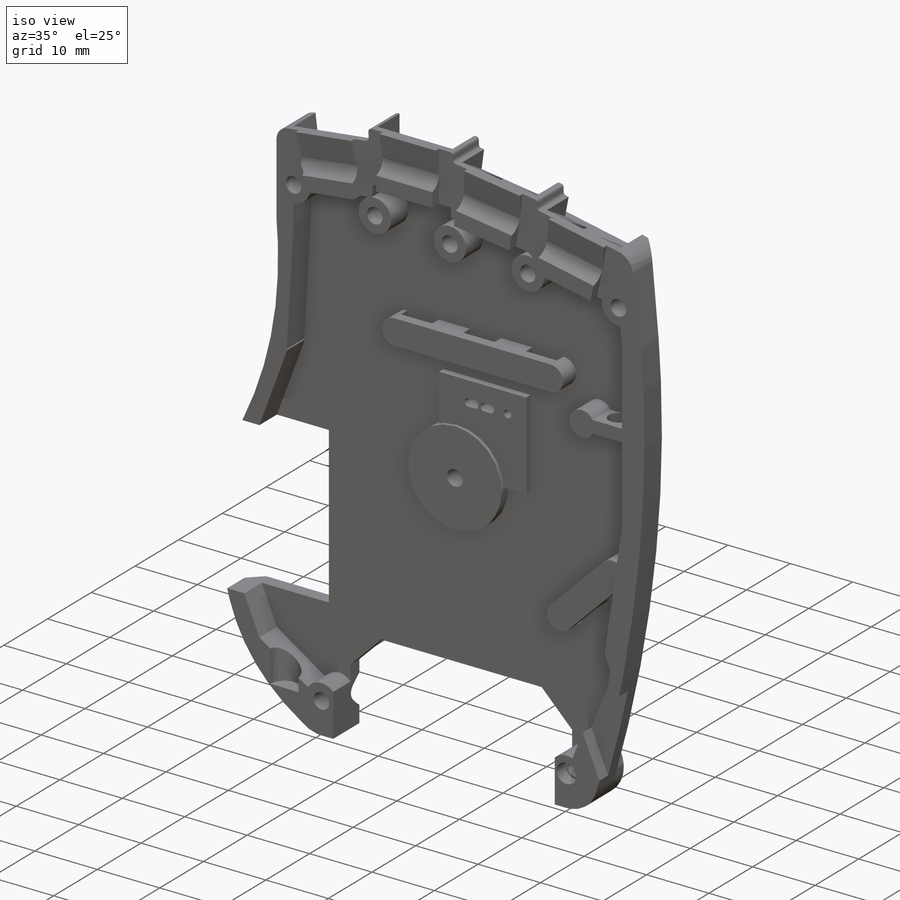
[diagram: iso view]
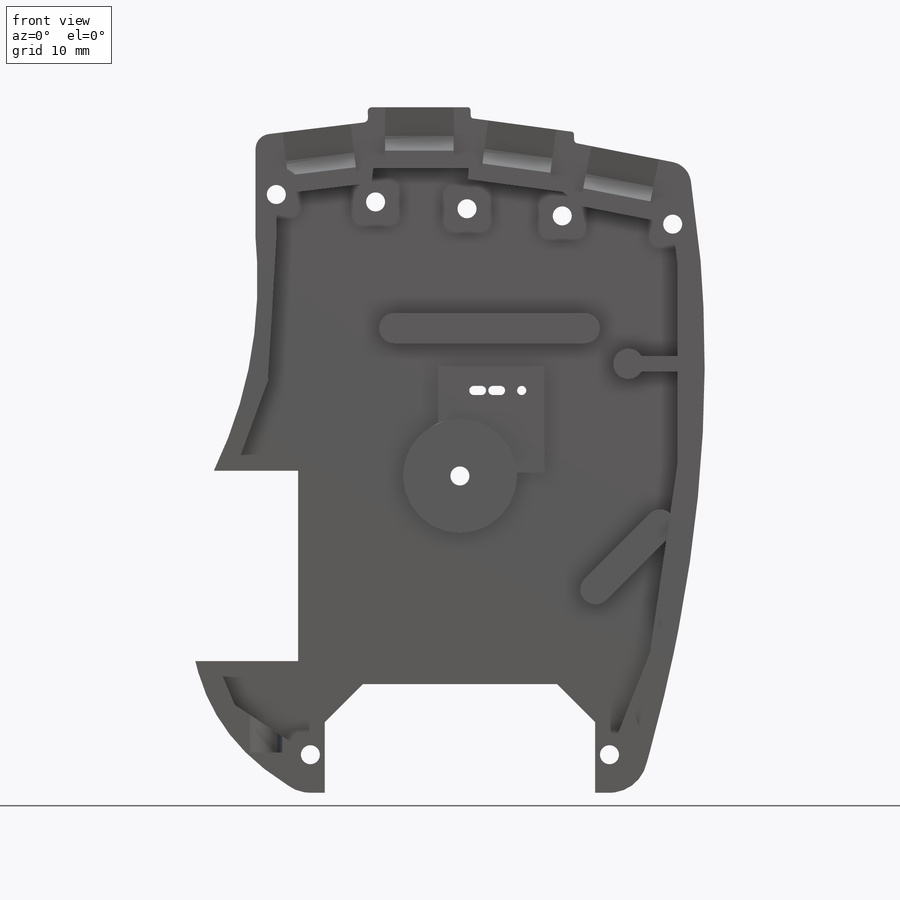
[diagram: front view]
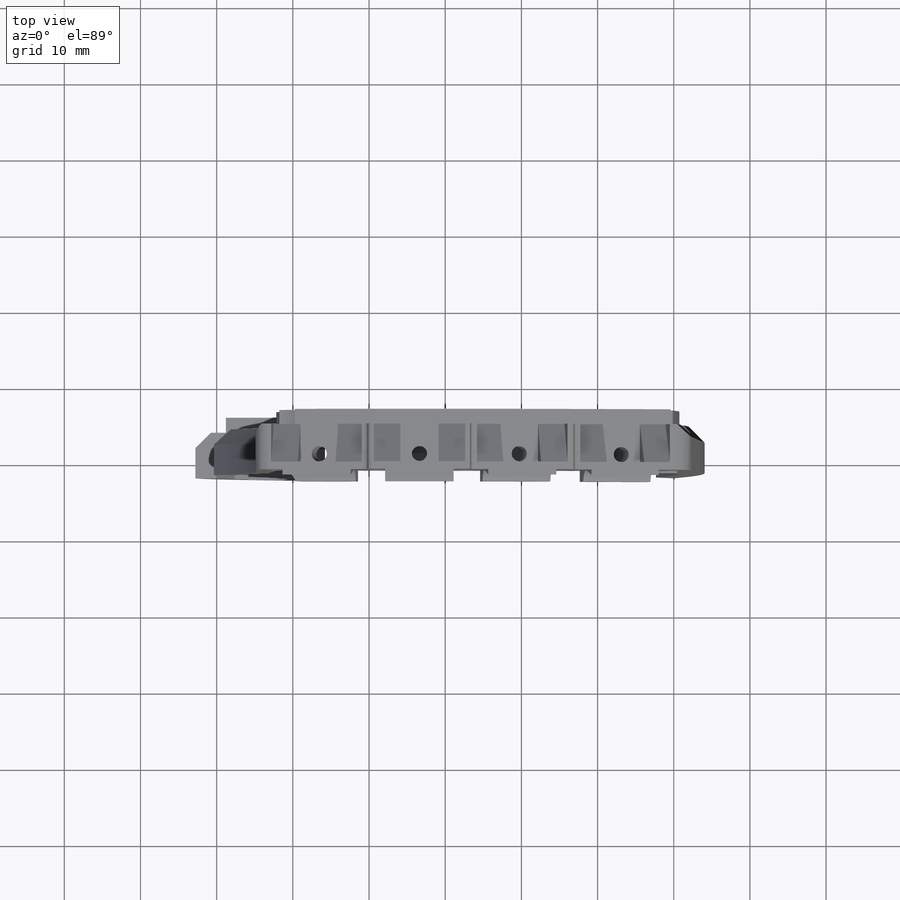
[diagram: top view]
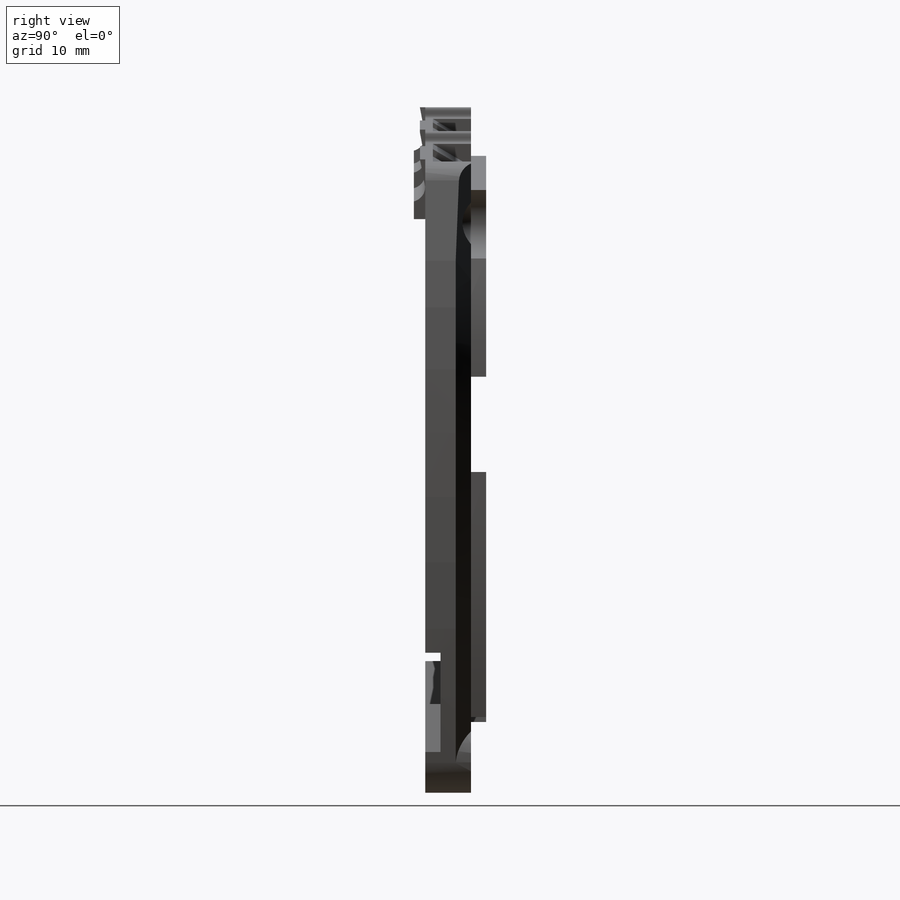
[diagram: right view]
SOLIDWORKS PART (.sldprt)
format: sldprt  version: not decoded by parser v0  size: 1,618,944 bytes
history: native  units: mm
features: sketch x45, cut_extrude x31, extrude x12, plane x5, chamfer x3, material x1 (+14 scaffold rows collapsed; 1 parser-record rows omitted)
feature tree (112):
  scaffold x14  (default folders/planes/origin — collapsed)
  material  "Material <not specified>"
  sketch  "Sketch1"  dims[D1=74.0mm D2=90.0mm]
  sketch  "Sketch2"  dims[c1.D11=5.0mm c1.D12=5.0mm c1.D13=5.0mm c1.D14=2.0mm c1.D2=3.0mm c1.D15=~4.769679mm c2.D11=~5.103098mm c2.D1=45.0mm c2.D2=13.0mm c2.D3=12.5mm c2.D4=1.0mm c2.D5=1.0mm c2.D6=12.5mm c2.D7=1.0mm c2.D8=13.0mm c2.D9=2.0mm c2.D10=1.5mm c2.D15=~39.262421mm c3.D11=12.5mm c3.D8=12.5mm c4.D11=12.5mm c4.D15=16.0mm c4.D16=~1.562387mm]
  extrude  "Boss-Extrude1"  Depth=2mm
  sketch  "Sketch28"  dims[D1=8.0mm D2=8.0mm D3=8.0mm D4=8.0mm D5=5.0mm D6=25.0mm]
  cut_extrude  "Cut-Extrude1"  Depth=2mm
  parser-record x1  (decoder bookkeeping rows leaked as tree rows — omitted from the tree; the rows remain in map.json)
  sketch  "Sketch30"  dims[D1=5.2mm D2=14.5mm D3=12.5mm D4=12.0mm]
  extrude  "Boss-Extrude2"  [1 undecoded]
  sketch  "Sketch32"  dims[D1=2.5mm]
  cut_extrude  "Cut-Extrude2"  [1 undecoded]
  sketch  "Sketch33"  dims[D1=6.0mm]
  cut_extrude  "Cut-Extrude3"  Depth=2mm
  sketch  "Sketch41"  dims[D1=9.0mm D2=1.5mm]
  extrude  "Boss-Extrude3"  [1 undecoded]
  sketch  "Sketch42"  dims[D1=9.0mm D2=1.5mm]
  extrude  "Boss-Extrude4"  [1 undecoded]
  sketch  "Sketch43"  dims[D1=9.0mm D2=1.5mm]
  extrude  "Boss-Extrude5"  [1 undecoded]
  sketch  "Sketch44"  dims[D1=1.5mm D2=9.0mm]
  extrude  "Boss-Extrude6"  [1 undecoded]
  sketch  "Sketch46"  dims[c1.D2=5.0mm c1.D1=25.5mm c2.D2=1.88mm c2.D3=~15.028325mm c2.D4=5.0mm c3.D3=14.27mm c3.D4=9.27mm]
  cut_extrude  "Cut-Extrude11"  [1 undecoded]
  sketch  "Sketch47"  dims[c1.D3=4.0mm c1.D1=0.5mm c1.D2=3.77mm c1.D4=2.5mm c2.D1=3.77mm c2.D2=0.5mm c2.D4=8.0mm c2.D5=1.0mm]
  cut_extrude  "Cut-Extrude12"  [1 undecoded]
  sketch  "Sketch48"  dims[D3=4.0mm D1=0.5mm D2=3.77mm D4=8.0mm D5=1.0mm]
  cut_extrude  "Cut-Extrude13"  [1 undecoded]
  sketch  "Sketch49"  dims[D5=4.0mm D1=8.0mm D2=3.77mm D3=0.5mm D4=1.0mm]
  cut_extrude  "Cut-Extrude14"  [1 undecoded]
  sketch  "Sketch50"  dims[4=4.0mm D1=0.5mm D2=3.7mm D3=8.0mm D4=1.0mm]
  cut_extrude  "Cut-Extrude15"  [1 undecoded]
  plane  "Plane1"
  plane  "Plane2"
  plane  "Plane3"
  plane  "Plane4"
  sketch  "Sketch53"  dims[D1=6.0mm D2=3.0mm D3=5.0mm]
  cut_extrude  "Cut-Extrude16"  Depth=10.5mm
  sketch  "Sketch54"  dims[D1=6.0mm D2=5.0mm D3=3.0mm]
  cut_extrude  "Cut-Extrude17"  Depth=10.5mm
  sketch  "Sketch55"  dims[D1=6.0mm D2=5.0mm D3=3.0mm]
  cut_extrude  "Cut-Extrude18"  Depth=10.5mm
  sketch  "Sketch56"  dims[D1=6.0mm D2=5.0mm D3=3.0mm]
  cut_extrude  "Cut-Extrude19"  Depth=10.5mm
  sketch  "Sketch57"  dims[D1=13.5mm]
  cut_extrude  "Cut-Extrude21"  [1 undecoded]
  sketch  "Sketch59"  dims[D1=2.5mm D2=28.0mm]
  sketch  "Sketch61"  dims[D1=22.0mm D2=8.0mm D3=5.0mm]
  cut_extrude  "Cut-Extrude23"  Depth=2mm
  sketch  "Sketch62"  dims[D1=2.0mm D2=2.71mm]
  cut_extrude  "Cut-Extrude24"  [1 undecoded]
  sketch  "Sketch63"  dims[D1=2.0mm D2=2.77mm]
  cut_extrude  "Cut-Extrude25"  [1 undecoded]
  sketch  "Sketch64"  dims[D1=2.0mm D2=2.77mm]
  cut_extrude  "Cut-Extrude26"  [1 undecoded]
  sketch  "Sketch65"  dims[D1=2.0mm D2=2.77mm]
  cut_extrude  "Cut-Extrude27"  [1 undecoded]
  sketch  "Sketch68"  dims[D1=5.0mm]
  cut_extrude  "Cut-Extrude28"  Depth=3mm
  sketch  "Sketch69"  dims[D1=5.0mm]
  cut_extrude  "Cut-Extrude29"  Depth=3mm
  sketch  "Sketch70"  dims[D1=5.0mm]
  cut_extrude  "Cut-Extrude30"  Depth=3mm
  sketch  "Sketch71"  dims[D1=5.0mm]
  cut_extrude  "Cut-Extrude31"  Depth=3mm
  sketch  "Sketch72"  dims[D1=4.0mm D2=2.0mm D3=6.418mm]
  extrude  "Boss-Extrude7"  [1 undecoded]
  sketch  "Sketch73"  dims[c1.D1=3.0mm c1.D2=0.75mm c1.D3=2.0mm c1.D4=0.75mm c1.D5=2.5mm c2.D2=1.5mm]
  cut_extrude  "Cut-Extrude32"  [1 undecoded]
  chamfer  "Chamfer1"  Distance=2mm Angle=45deg
  chamfer  "Chamfer2"  Distance=2mm Angle=45deg
  chamfer  "Chamfer3"  Distance=2mm Angle=45deg
  sketch  "Sketch75"  dims[D1=4.0mm D2=1.5mm]
  sketch  "Sketch76"  dims[c1.D3=~30.984291mm c1.D6=0.75mm c1.D1=2.0mm c1.D2=~8.441391mm c2.D2=~179.986132deg c3.D2=~5.968242mm c4.D2=~179.986132deg c5.D2=2.0mm c5.D3=2.0mm c5.D4=2.0mm c5.D5=2.0mm]
  sketch  "Sketch77"  dims[D1=2.0mm D2=2.0mm]
  cut_extrude  "Cut-Extrude39"  [1 undecoded]
  plane  "Plane6"
  sketch  "Sketch83"  dims[D3=4.5mm D1=6.73mm D2=8.0mm]
  cut_extrude  "Cut-Extrude40"  Depth=37mm
  sketch  "Sketch84"  dims[D1=1.0mm]
  cut_extrude  "Cut-Extrude41"  [1 undecoded]
  extrude  "Boss-Extrude10"  Depth=2mm
  extrude  "Boss-Extrude11"  Depth=2mm
  sketch  "Sketch85"  dims[D1=15.0mm]
  extrude  "Boss-Extrude12"  Depth=1.5mm
  sketch  "Sketch86"  dims[D1=10.0mm]
  cut_extrude  "Cut-Extrude42"  Depth=1mm
  sketch  "Sketch87"  dims[D1=2.0mm D2=2.0mm D3=2.0mm D4=2.0mm]
  extrude  "Boss-Extrude13"  Depth=1mm
  sketch  "Sketch88"  dims[D1=12.0mm D2=25.0mm]
  extrude  "Boss-Extrude14"  Depth=3mm
  sketch  "Sketch91"  dims[D1=1.5mm D2=5.0mm D3=5.0mm]
  cut_extrude  "Cut-Extrude44"  [1 undecoded]
  sketch  "Sketch92"  dims[D1=5.0mm D2=1.5mm]
  cut_extrude  "Cut-Extrude45"  [1 undecoded]
  sketch  "Sketch93"  dims[c1.D2=1.2mm c1.D1=2.0mm c1.D3=1.0mm c1.D4=1.5mm c1.D5=2.78mm c2.D1=1.2mm c2.D6=1.0mm]
  cut_extrude  "Cut-Extrude46"  [1 undecoded]
  sketch  "Sketch94"
  cut_extrude  "Cut-Extrude47"  [1 undecoded]
decode coverage: 66 of 91 modeling features carry decoded parameters
note: ~ marks probable driven/reference dimensions
note: 24 parameter values undecoded
summary: no parameter record found for 24 features
note: suppression state not decoded; provenance and decode notes live in map.json
